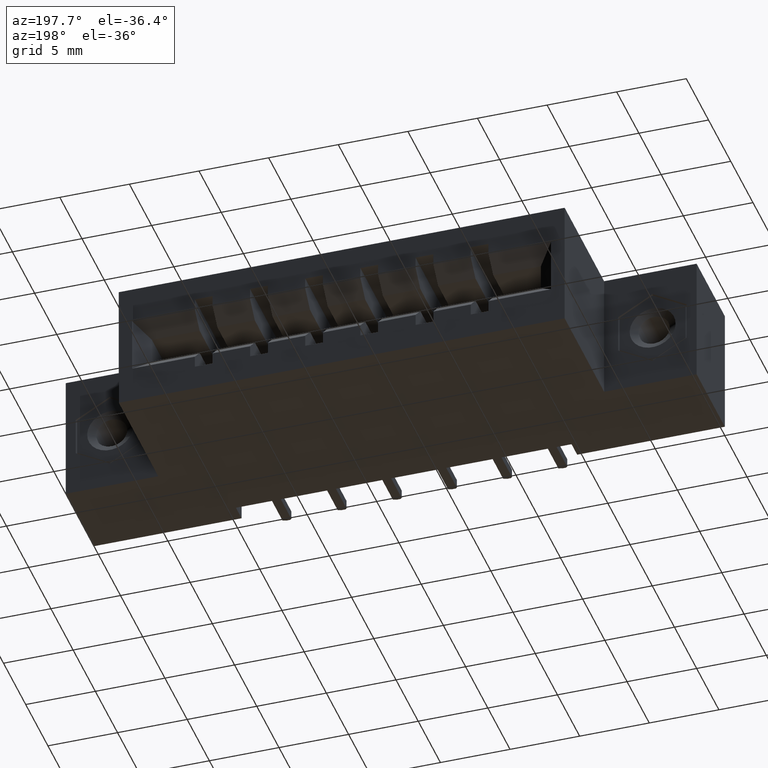
[diagram: clean part render]
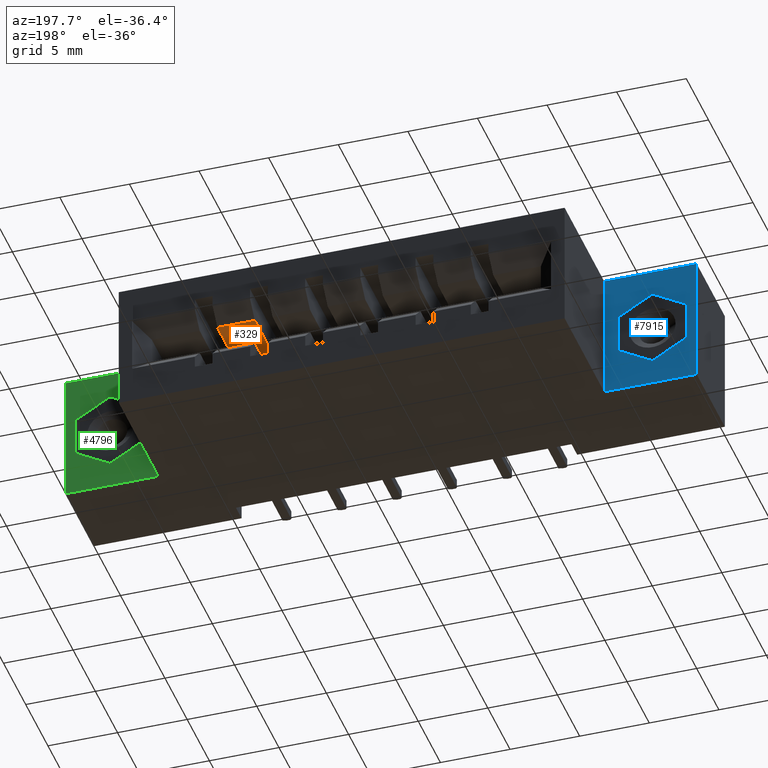
[diagram: same view with three faces highlighted in distinct colors, each labeled with its STEP entity id]
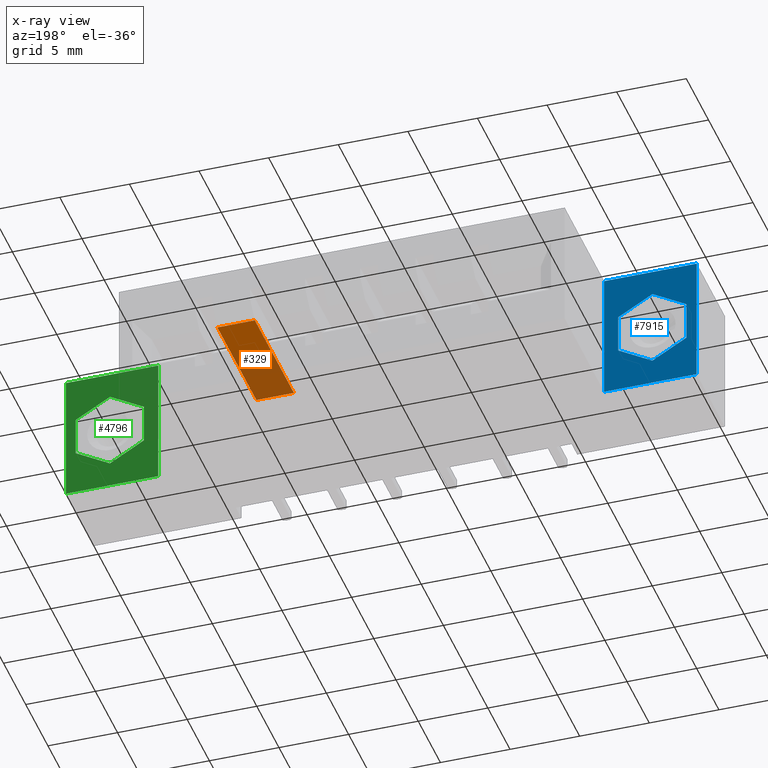
[diagram: x-ray of the same camera — body ghosted, the three highlighted faces saturated]
A machine part, auxiliary view with three faces highlighted in distinct colors.
The next image is the same camera in x-ray (body ghosted, the three faces saturated) — at least one of them is partly hidden behind the body in this view.
Their STEP definitions:

[orange] entity #329 — the highlighted planar face has unit normal (-0, 0, 1).
#329 = ADVANCED_FACE ( 'NONE', ( #6529 ), #4679, .F. ) ;
#660 = VERTEX_POINT ( 'NONE', #1130 ) ;
#1130 = CARTESIAN_POINT ( 'NONE',  ( 1.151000000000000000, 0.5579999999999999400, -0.1480000000000002400 ) ) ;
#1183 = DIRECTION ( 'NONE',  ( -0.0000000000000000000, 1.000000000000000000, -8.801056680619408300E-016 ) ) ;
#1557 = LINE ( 'NONE', #9034, #3045 ) ;
#1646 = ORIENTED_EDGE ( 'NONE', *, *, #4141, .F. ) ;
#2583 = CARTESIAN_POINT ( 'NONE',  ( 1.256999999999999700, 0.5579999999999999400, -0.1480000000000002400 ) ) ;
#3045 = VECTOR ( 'NONE', #7594, 39.37007874015748100 ) ;
#3340 = DIRECTION ( 'NONE',  ( -1.241749088029209900E-016, 0.0000000000000000000, 1.000000000000000000 ) ) ;
#3342 = CARTESIAN_POINT ( 'NONE',  ( 1.256999999999999700, 0.5999999999999996400, -0.1480000000000002700 ) ) ;
#3617 = VECTOR ( 'NONE', #1183, 39.37007874015748100 ) ;
#3628 = LINE ( 'NONE', #6603, #7275 ) ;
#3740 = EDGE_CURVE ( 'NONE', #660, #5029, #1557, .T. ) ;
#3874 = EDGE_CURVE ( 'NONE', #5314, #5029, #5591, .T. ) ;
#4141 = EDGE_CURVE ( 'NONE', #4927, #5314, #3628, .T. ) ;
#4204 = DIRECTION ( 'NONE',  ( -0.0000000000000000000, 1.000000000000000000, -8.801056680619408300E-016 ) ) ;
#4553 = DIRECTION ( 'NONE',  ( 1.000000000000000000, 0.0000000000000000000, 1.241749088029209900E-016 ) ) ;
#4679 = PLANE ( 'NONE',  #9155 ) ;
#4707 = CARTESIAN_POINT ( 'NONE',  ( 0.3419999999999999200, 0.2119999999999999400, -0.1480000000000003000 ) ) ;
#4712 = CARTESIAN_POINT ( 'NONE',  ( 1.151000000000000000, 0.2119999999999999400, -0.1480000000000001900 ) ) ;
#4927 = VERTEX_POINT ( 'NONE', #4712 ) ;
#5029 = VERTEX_POINT ( 'NONE', #2583 ) ;
#5314 = VERTEX_POINT ( 'NONE', #7281 ) ;
#5591 = LINE ( 'NONE', #3342, #3617 ) ;
#5683 = LINE ( 'NONE', #7072, #9292 ) ;
#5914 = DIRECTION ( 'NONE',  ( 1.000000000000000000, 0.0000000000000000000, 1.241749088029209900E-016 ) ) ;
#6226 = EDGE_CURVE ( 'NONE', #4927, #660, #5683, .T. ) ;
#6529 = FACE_OUTER_BOUND ( 'NONE', #7544, .T. ) ;
#6603 = CARTESIAN_POINT ( 'NONE',  ( 0.3419999999999999200, 0.2119999999999999400, -0.1480000000000003000 ) ) ;
#6807 = ORIENTED_EDGE ( 'NONE', *, *, #6226, .T. ) ;
#7072 = CARTESIAN_POINT ( 'NONE',  ( 1.151000000000000000, 0.5999999999999996400, -0.1480000000000002700 ) ) ;
#7275 = VECTOR ( 'NONE', #5914, 39.37007874015748100 ) ;
#7281 = CARTESIAN_POINT ( 'NONE',  ( 1.256999999999999700, 0.2119999999999998300, -0.1479999999999999400 ) ) ;
#7544 = EDGE_LOOP ( 'NONE', ( #8918, #8121, #1646, #6807 ) ) ;
#7594 = DIRECTION ( 'NONE',  ( 1.000000000000000000, 0.0000000000000000000, 1.241749088029209900E-016 ) ) ;
#8121 = ORIENTED_EDGE ( 'NONE', *, *, #3874, .F. ) ;
#8918 = ORIENTED_EDGE ( 'NONE', *, *, #3740, .T. ) ;
#9034 = CARTESIAN_POINT ( 'NONE',  ( 0.3419999999999999200, 0.5579999999999999400, -0.1480000000000003000 ) ) ;
#9155 = AXIS2_PLACEMENT_3D ( 'NONE', #4707, #3340, #4553 ) ;
#9292 = VECTOR ( 'NONE', #4204, 39.37007874015748100 ) ;

[blue] entity #7915 — the highlighted planar face has unit normal (0, 1, 0).
#314 = DIRECTION ( 'NONE',  ( 0.0000000000000000000, 1.000000000000000000, 0.0000000000000000000 ) ) ;
#405 = CARTESIAN_POINT ( 'NONE',  ( 0.2215000000000001400, 0.2500000000000000000, -0.2407143009767976600 ) ) ;
#417 = VECTOR ( 'NONE', #3816, 39.37007874015748100 ) ;
#513 = LINE ( 'NONE', #7406, #6419 ) ;
#581 = EDGE_CURVE ( 'NONE', #6306, #8325, #8587, .T. ) ;
#612 = CARTESIAN_POINT ( 'NONE',  ( 0.2615000000000001200, 0.2500000000000000000, -0.3700000000000000000 ) ) ;
#629 = VECTOR ( 'NONE', #2215, 39.37007874015747400 ) ;
#685 = ORIENTED_EDGE ( 'NONE', *, *, #8703, .F. ) ;
#839 = LINE ( 'NONE', #3247, #5481 ) ;
#841 = CARTESIAN_POINT ( 'NONE',  ( 0.2615000000000000700, 0.2500000000000000000, -0.3700000000000000000 ) ) ;
#934 = VECTOR ( 'NONE', #1852, 39.37007874015748100 ) ;
#1017 = DIRECTION ( 'NONE',  ( 0.0000000000000000000, 0.0000000000000000000, -1.000000000000000000 ) ) ;
#1131 = ORIENTED_EDGE ( 'NONE', *, *, #4313, .T. ) ;
#1297 = ORIENTED_EDGE ( 'NONE', *, *, #2064, .F. ) ;
#1320 = ORIENTED_EDGE ( 'NONE', *, *, #581, .T. ) ;
#1411 = VERTEX_POINT ( 'NONE', #9552 ) ;
#1421 = LINE ( 'NONE', #3306, #934 ) ;
#1459 = EDGE_CURVE ( 'NONE', #2888, #4161, #513, .T. ) ;
#1466 = CARTESIAN_POINT ( 'NONE',  ( 0.0000000000000000000, 0.2500000000000000000, 0.0000000000000000000 ) ) ;
#1552 = CARTESIAN_POINT ( 'NONE',  ( 0.2215000000000001400, 0.2500000000000000000, -0.1292856990231998300 ) ) ;
#1607 = DIRECTION ( 'NONE',  ( -9.229216194811698800E-017, -0.0000000000000000000, -1.000000000000000000 ) ) ;
#1680 = CARTESIAN_POINT ( 'NONE',  ( 0.0000000000000000000, 0.2500000000000000000, -0.3700000000000000000 ) ) ;
#1707 = ORIENTED_EDGE ( 'NONE', *, *, #7705, .T. ) ;
#1761 = EDGE_LOOP ( 'NONE', ( #1707, #1320, #4893, #1131 ) ) ;
#1852 = DIRECTION ( 'NONE',  ( 0.0000000000000000000, 0.0000000000000000000, 1.000000000000000000 ) ) ;
#2064 = EDGE_CURVE ( 'NONE', #6289, #2888, #4599, .T. ) ;
#2119 = VECTOR ( 'NONE', #6331, 39.37007874015748900 ) ;
#2215 = DIRECTION ( 'NONE',  ( 0.8660254037844386000, 0.0000000000000000000, 0.5000000000000002200 ) ) ;
#2306 = ORIENTED_EDGE ( 'NONE', *, *, #3884, .F. ) ;
#2693 = AXIS2_PLACEMENT_3D ( 'NONE', #3227, #314, #5532 ) ;
#2729 = DIRECTION ( 'NONE',  ( -0.8660254037844384900, 0.0000000000000000000, 0.5000000000000003300 ) ) ;
#2888 = VERTEX_POINT ( 'NONE', #8180 ) ;
#2929 = LINE ( 'NONE', #841, #8544 ) ;
#3227 = CARTESIAN_POINT ( 'NONE',  ( 0.0000000000000000000, 0.2500000000000000000, 0.0000000000000000000 ) ) ;
#3247 = CARTESIAN_POINT ( 'NONE',  ( 0.2215000000000001400, 0.2500000000000000000, -0.1292856990231998300 ) ) ;
#3306 = CARTESIAN_POINT ( 'NONE',  ( 0.02850000000000018800, 0.2500000000000000000, -0.2407143009767975500 ) ) ;
#3532 = ORIENTED_EDGE ( 'NONE', *, *, #3786, .F. ) ;
#3663 = CARTESIAN_POINT ( 'NONE',  ( 0.0000000000000000000, 0.2500000000000000000, -0.3700000000000000000 ) ) ;
#3786 = EDGE_CURVE ( 'NONE', #4161, #6635, #839, .T. ) ;
#3816 = DIRECTION ( 'NONE',  ( 0.0000000000000000000, 0.0000000000000000000, 1.000000000000000000 ) ) ;
#3884 = EDGE_CURVE ( 'NONE', #6635, #6521, #7499, .T. ) ;
#3906 = DIRECTION ( 'NONE',  ( 1.000000000000000000, 0.0000000000000000000, 0.0000000000000000000 ) ) ;
#4025 = VERTEX_POINT ( 'NONE', #612 ) ;
#4161 = VERTEX_POINT ( 'NONE', #1552 ) ;
#4216 = LINE ( 'NONE', #1680, #6379 ) ;
#4313 = EDGE_CURVE ( 'NONE', #4025, #6951, #4216, .T. ) ;
#4488 = VECTOR ( 'NONE', #3906, 39.37007874015748100 ) ;
#4510 = FACE_BOUND ( 'NONE', #6643, .T. ) ;
#4562 = CARTESIAN_POINT ( 'NONE',  ( 0.2615000000000001200, 0.2500000000000000000, 0.0000000000000000000 ) ) ;
#4599 = LINE ( 'NONE', #7100, #629 ) ;
#4771 = EDGE_CURVE ( 'NONE', #8325, #4025, #2929, .T. ) ;
#4799 = PLANE ( 'NONE',  #2693 ) ;
#4893 = ORIENTED_EDGE ( 'NONE', *, *, #4771, .T. ) ;
#5419 = VECTOR ( 'NONE', #2729, 39.37007874015748900 ) ;
#5481 = VECTOR ( 'NONE', #1017, 39.37007874015748100 ) ;
#5489 = CARTESIAN_POINT ( 'NONE',  ( 0.2215000000000001400, 0.2500000000000000000, -0.2407143009767976600 ) ) ;
#5532 = DIRECTION ( 'NONE',  ( 0.0000000000000000000, -0.0000000000000000000, 1.000000000000000000 ) ) ;
#5669 = EDGE_CURVE ( 'NONE', #1411, #6289, #1421, .T. ) ;
#5721 = CARTESIAN_POINT ( 'NONE',  ( 0.02850000000000018800, 0.2500000000000000000, -0.1292856990231998300 ) ) ;
#6088 = DIRECTION ( 'NONE',  ( -1.000000000000000000, -0.0000000000000000000, -0.0000000000000000000 ) ) ;
#6289 = VERTEX_POINT ( 'NONE', #5721 ) ;
#6306 = VERTEX_POINT ( 'NONE', #1466 ) ;
#6329 = LINE ( 'NONE', #8884, #417 ) ;
#6331 = DIRECTION ( 'NONE',  ( -0.8660254037844386000, 0.0000000000000000000, -0.4999999999999998900 ) ) ;
#6379 = VECTOR ( 'NONE', #6088, 39.37007874015748100 ) ;
#6419 = VECTOR ( 'NONE', #9083, 39.37007874015749600 ) ;
#6435 = FACE_OUTER_BOUND ( 'NONE', #1761, .T. ) ;
#6521 = VERTEX_POINT ( 'NONE', #7502 ) ;
#6635 = VERTEX_POINT ( 'NONE', #5489 ) ;
#6643 = EDGE_LOOP ( 'NONE', ( #2306, #3532, #7559, #1297, #9145, #685 ) ) ;
#6951 = VERTEX_POINT ( 'NONE', #3663 ) ;
#7100 = CARTESIAN_POINT ( 'NONE',  ( 0.02850000000000018800, 0.2500000000000000000, -0.1292856990231998300 ) ) ;
#7406 = CARTESIAN_POINT ( 'NONE',  ( 0.1250000000000001700, 0.2500000000000000000, -0.07357139804640093500 ) ) ;
#7499 = LINE ( 'NONE', #405, #2119 ) ;
#7502 = CARTESIAN_POINT ( 'NONE',  ( 0.1250000000000002500, 0.2500000000000000000, -0.2964286019535965500 ) ) ;
#7559 = ORIENTED_EDGE ( 'NONE', *, *, #1459, .F. ) ;
#7705 = EDGE_CURVE ( 'NONE', #6951, #6306, #6329, .T. ) ;
#7915 = ADVANCED_FACE ( 'NONE', ( #4510, #6435 ), #4799, .T. ) ;
#8170 = CARTESIAN_POINT ( 'NONE',  ( 0.0000000000000000000, 0.2500000000000000000, 0.0000000000000000000 ) ) ;
#8180 = CARTESIAN_POINT ( 'NONE',  ( 0.1250000000000001700, 0.2500000000000000000, -0.07357139804640093500 ) ) ;
#8325 = VERTEX_POINT ( 'NONE', #4562 ) ;
#8544 = VECTOR ( 'NONE', #1607, 39.37007874015748100 ) ;
#8564 = CARTESIAN_POINT ( 'NONE',  ( 0.1250000000000001900, 0.2500000000000000000, -0.2964286019535964900 ) ) ;
#8587 = LINE ( 'NONE', #8170, #4488 ) ;
#8703 = EDGE_CURVE ( 'NONE', #6521, #1411, #9259, .T. ) ;
#8884 = CARTESIAN_POINT ( 'NONE',  ( 0.0000000000000000000, 0.2500000000000000000, -0.3700000000000000000 ) ) ;
#9083 = DIRECTION ( 'NONE',  ( 0.8660254037844384900, 0.0000000000000000000, -0.5000000000000002200 ) ) ;
#9145 = ORIENTED_EDGE ( 'NONE', *, *, #5669, .F. ) ;
#9259 = LINE ( 'NONE', #8564, #5419 ) ;
#9552 = CARTESIAN_POINT ( 'NONE',  ( 0.02850000000000018800, 0.2500000000000000000, -0.2407143009767975500 ) ) ;

[green] entity #4796 — the highlighted planar face has unit normal (0, 1, 0).
#91 = DIRECTION ( 'NONE',  ( 0.0000000000000000000, 0.0000000000000000000, 1.000000000000000000 ) ) ;
#235 = VERTEX_POINT ( 'NONE', #1213 ) ;
#318 = DIRECTION ( 'NONE',  ( -0.8660254037844393700, -0.0000000000000000000, 0.4999999999999985600 ) ) ;
#552 = VERTEX_POINT ( 'NONE', #5705 ) ;
#710 = CARTESIAN_POINT ( 'NONE',  ( 1.755500000000001600, 0.2500000000000000000, -0.2407143009767978300 ) ) ;
#814 = DIRECTION ( 'NONE',  ( 0.0000000000000000000, 0.0000000000000000000, 1.000000000000000000 ) ) ;
#1030 = VERTEX_POINT ( 'NONE', #5624 ) ;
#1090 = LINE ( 'NONE', #8559, #5041 ) ;
#1170 = LINE ( 'NONE', #9127, #8748 ) ;
#1213 = CARTESIAN_POINT ( 'NONE',  ( 1.784000000000000500, 0.2500000000000001100, -0.3700000000000000000 ) ) ;
#1280 = DIRECTION ( 'NONE',  ( -0.0000000000000000000, -0.0000000000000000000, 1.000000000000000000 ) ) ;
#1412 = EDGE_CURVE ( 'NONE', #8709, #235, #6632, .T. ) ;
#1448 = ORIENTED_EDGE ( 'NONE', *, *, #3757, .T. ) ;
#2244 = VECTOR ( 'NONE', #318, 39.37007874015748900 ) ;
#2334 = PLANE ( 'NONE',  #7624 ) ;
#2445 = ORIENTED_EDGE ( 'NONE', *, *, #2759, .T. ) ;
#2464 = VECTOR ( 'NONE', #8222, 39.37007874015749600 ) ;
#2469 = LINE ( 'NONE', #7663, #2244 ) ;
#2477 = VECTOR ( 'NONE', #814, 39.37007874015748100 ) ;
#2508 = VERTEX_POINT ( 'NONE', #9367 ) ;
#2548 = ORIENTED_EDGE ( 'NONE', *, *, #4275, .F. ) ;
#2692 = FACE_BOUND ( 'NONE', #8794, .T. ) ;
#2719 = ORIENTED_EDGE ( 'NONE', *, *, #2894, .F. ) ;
#2759 = EDGE_CURVE ( 'NONE', #1030, #6504, #8326, .T. ) ;
#2773 = VERTEX_POINT ( 'NONE', #4118 ) ;
#2812 = LINE ( 'NONE', #9098, #4797 ) ;
#2894 = EDGE_CURVE ( 'NONE', #3670, #2773, #1090, .T. ) ;
#3128 = CARTESIAN_POINT ( 'NONE',  ( 1.522500000000001100, 0.2500000000000000000, -1.704402182713329600E-016 ) ) ;
#3142 = EDGE_CURVE ( 'NONE', #6932, #3670, #2469, .T. ) ;
#3199 = DIRECTION ( 'NONE',  ( -0.0000000000000000000, -0.0000000000000000000, -1.000000000000000000 ) ) ;
#3217 = ORIENTED_EDGE ( 'NONE', *, *, #3142, .F. ) ;
#3270 = ORIENTED_EDGE ( 'NONE', *, *, #4898, .F. ) ;
#3274 = DIRECTION ( 'NONE',  ( 0.8660254037844384900, -0.0000000000000000000, 0.5000000000000002200 ) ) ;
#3368 = DIRECTION ( 'NONE',  ( -0.0000000000000000000, -0.0000000000000000000, -1.000000000000000000 ) ) ;
#3493 = VECTOR ( 'NONE', #3199, 39.37007874015748100 ) ;
#3495 = CARTESIAN_POINT ( 'NONE',  ( 1.784000000000000500, 0.2500000000000000000, 0.0000000000000000000 ) ) ;
#3670 = VERTEX_POINT ( 'NONE', #8975 ) ;
#3757 = EDGE_CURVE ( 'NONE', #235, #1030, #2812, .T. ) ;
#4118 = CARTESIAN_POINT ( 'NONE',  ( 1.562500000000001100, 0.2500000000000000000, -0.1292856990231999700 ) ) ;
#4275 = EDGE_CURVE ( 'NONE', #4653, #6932, #4456, .T. ) ;
#4357 = CARTESIAN_POINT ( 'NONE',  ( 1.522500000000001100, 0.2500000000000000000, -0.3700000000000001600 ) ) ;
#4456 = LINE ( 'NONE', #4587, #2464 ) ;
#4493 = VECTOR ( 'NONE', #3368, 39.37007874015748100 ) ;
#4533 = EDGE_CURVE ( 'NONE', #6504, #8709, #8659, .T. ) ;
#4578 = DIRECTION ( 'NONE',  ( 0.0000000000000000000, 1.000000000000000000, -0.0000000000000000000 ) ) ;
#4587 = CARTESIAN_POINT ( 'NONE',  ( 1.659000000000001600, 0.2500000000000000000, -0.2964286019535967200 ) ) ;
#4653 = VERTEX_POINT ( 'NONE', #710 ) ;
#4760 = DIRECTION ( 'NONE',  ( -1.000000000000000000, 0.0000000000000000000, -5.223418725935506000E-016 ) ) ;
#4796 = ADVANCED_FACE ( 'NONE', ( #2692, #6591 ), #2334, .T. ) ;
#4797 = VECTOR ( 'NONE', #4760, 39.37007874015748100 ) ;
#4898 = EDGE_CURVE ( 'NONE', #552, #4653, #7382, .T. ) ;
#5041 = VECTOR ( 'NONE', #1280, 39.37007874015748100 ) ;
#5624 = CARTESIAN_POINT ( 'NONE',  ( 1.522500000000001100, 0.2500000000000000000, -0.3700000000000001600 ) ) ;
#5638 = EDGE_CURVE ( 'NONE', #2773, #2508, #1170, .T. ) ;
#5705 = CARTESIAN_POINT ( 'NONE',  ( 1.755500000000001600, 0.2500000000000000000, -0.1292856990232000000 ) ) ;
#5880 = CARTESIAN_POINT ( 'NONE',  ( 1.659000000000001600, 0.2500000000000000000, -0.2964286019535967200 ) ) ;
#6042 = DIRECTION ( 'NONE',  ( 0.8660254037844397100, -0.0000000000000000000, -0.4999999999999981700 ) ) ;
#6319 = ORIENTED_EDGE ( 'NONE', *, *, #4533, .T. ) ;
#6473 = EDGE_CURVE ( 'NONE', #2508, #552, #7463, .T. ) ;
#6504 = VERTEX_POINT ( 'NONE', #3128 ) ;
#6591 = FACE_OUTER_BOUND ( 'NONE', #7240, .T. ) ;
#6632 = LINE ( 'NONE', #9251, #4493 ) ;
#6694 = VECTOR ( 'NONE', #8623, 39.37007874015748100 ) ;
#6721 = CARTESIAN_POINT ( 'NONE',  ( 1.755500000000001600, 0.2500000000000000000, -0.1292856990232000000 ) ) ;
#6932 = VERTEX_POINT ( 'NONE', #5880 ) ;
#7240 = EDGE_LOOP ( 'NONE', ( #1448, #2445, #6319, #7476 ) ) ;
#7382 = LINE ( 'NONE', #9013, #3493 ) ;
#7463 = LINE ( 'NONE', #6721, #9176 ) ;
#7476 = ORIENTED_EDGE ( 'NONE', *, *, #1412, .T. ) ;
#7578 = ORIENTED_EDGE ( 'NONE', *, *, #6473, .F. ) ;
#7624 = AXIS2_PLACEMENT_3D ( 'NONE', #8919, #4578, #91 ) ;
#7663 = CARTESIAN_POINT ( 'NONE',  ( 1.562500000000001100, 0.2500000000000000000, -0.2407143009767977500 ) ) ;
#8222 = DIRECTION ( 'NONE',  ( -0.8660254037844384900, -0.0000000000000000000, -0.5000000000000002200 ) ) ;
#8326 = LINE ( 'NONE', #4357, #2477 ) ;
#8559 = CARTESIAN_POINT ( 'NONE',  ( 1.562500000000001100, 0.2500000000000000000, -0.1292856990232000000 ) ) ;
#8578 = ORIENTED_EDGE ( 'NONE', *, *, #5638, .F. ) ;
#8593 = CARTESIAN_POINT ( 'NONE',  ( 1.784000000000000500, 0.2500000000000000000, 0.0000000000000000000 ) ) ;
#8623 = DIRECTION ( 'NONE',  ( 1.000000000000000000, -0.0000000000000000000, 6.517790373664756200E-016 ) ) ;
#8659 = LINE ( 'NONE', #3495, #6694 ) ;
#8709 = VERTEX_POINT ( 'NONE', #8593 ) ;
#8748 = VECTOR ( 'NONE', #3274, 39.37007874015749600 ) ;
#8794 = EDGE_LOOP ( 'NONE', ( #2719, #3217, #2548, #3270, #7578, #8578 ) ) ;
#8919 = CARTESIAN_POINT ( 'NONE',  ( 1.522500000000001100, 0.2500000000000000000, -0.3700000000000001600 ) ) ;
#8975 = CARTESIAN_POINT ( 'NONE',  ( 1.562500000000001100, 0.2500000000000000000, -0.2407143009767977500 ) ) ;
#9013 = CARTESIAN_POINT ( 'NONE',  ( 1.755500000000001600, 0.2500000000000000000, -0.2407143009767978300 ) ) ;
#9098 = CARTESIAN_POINT ( 'NONE',  ( 1.784000000000000500, 0.2500000000000000000, -0.3700000000000000000 ) ) ;
#9127 = CARTESIAN_POINT ( 'NONE',  ( 1.659000000000001100, 0.2500000000000000000, -0.07357139804640112900 ) ) ;
#9176 = VECTOR ( 'NONE', #6042, 39.37007874015748100 ) ;
#9251 = CARTESIAN_POINT ( 'NONE',  ( 1.784000000000000500, 0.2500000000000000000, -0.3700000000000000000 ) ) ;
#9367 = CARTESIAN_POINT ( 'NONE',  ( 1.659000000000001100, 0.2500000000000000000, -0.07357139804640112900 ) ) ;